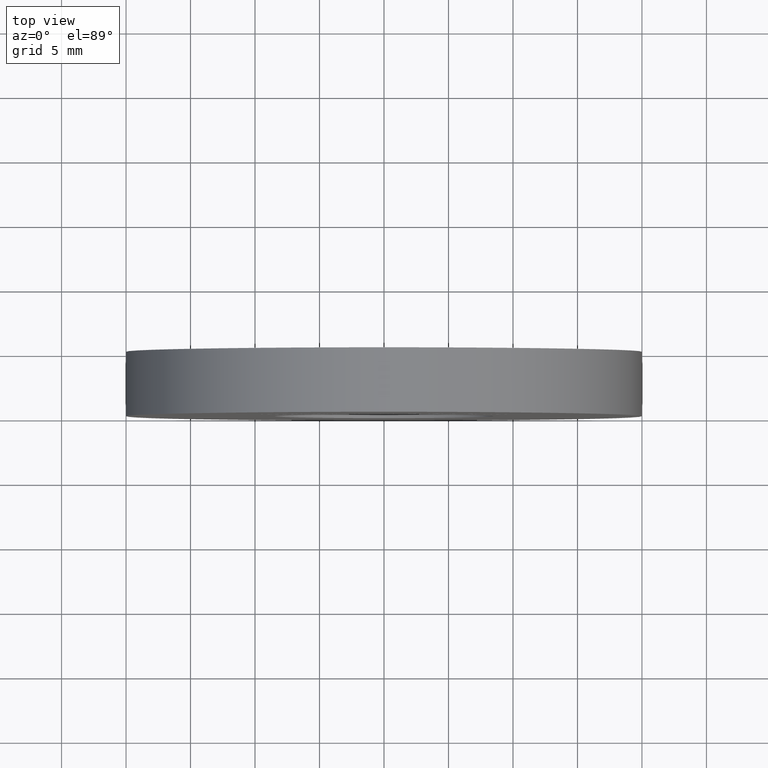
[diagram: clean part render]
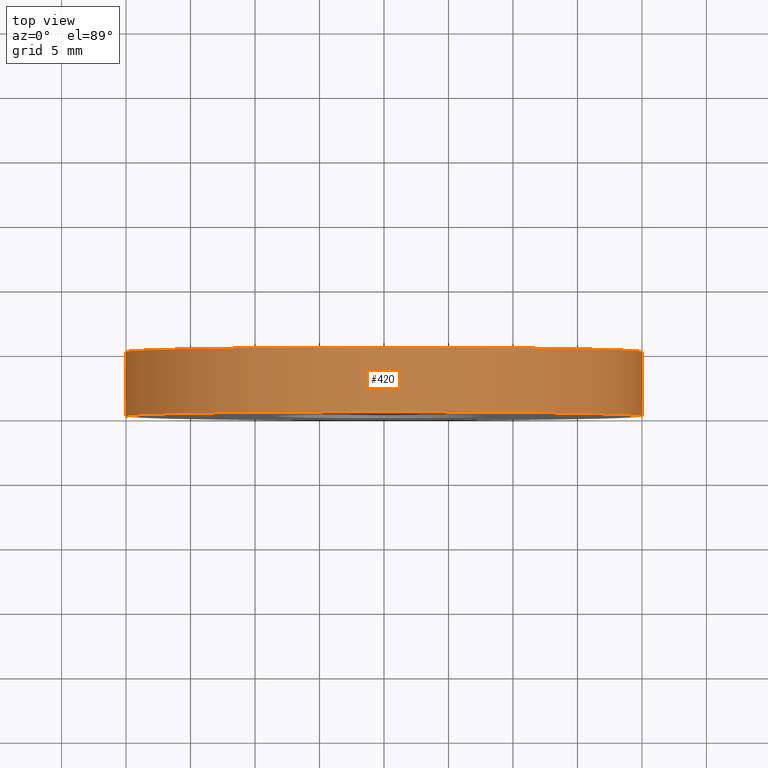
[diagram: same view with one face highlighted and labeled with its STEP entity id]
A machine part, top view. The second image highlights one B-rep face of the part: STEP entity #420.
In plain terms, the highlighted cylindrical surface (partial cylindrical patch) has radius 20 mm, axis along (0, 1, -0).
Its self-contained STEP definition (entity closure, byte-faithful):
#48 = VERTEX_POINT ( 'NONE', #9935 ) ;
#286 = VECTOR ( 'NONE', #4634, 1000.000000000000000 ) ;
#374 = DIRECTION ( 'NONE',  ( -1.000000000000000000, 1.387778780781444887E-15, 0.000000000000000000 ) ) ;
#420 = ADVANCED_FACE ( 'NONE', ( #12079 ), #3850, .T. ) ;
#422 = DIRECTION ( 'NONE',  ( 1.387778780781446464E-15, 1.000000000000000000, -0.000000000000000000 ) ) ;
#485 = AXIS2_PLACEMENT_3D ( 'NONE', #7285, #422, #374 ) ;
#708 = ORIENTED_EDGE ( 'NONE', *, *, #3933, .F. ) ;
#931 = VERTEX_POINT ( 'NONE', #9288 ) ;
#1179 = LINE ( 'NONE', #5608, #286 ) ;
#1698 = EDGE_CURVE ( 'NONE', #931, #9611, #1179, .T. ) ;
#2046 = DIRECTION ( 'NONE',  ( 1.387778780781446464E-15, 1.000000000000000000, -0.000000000000000000 ) ) ;
#2443 = CIRCLE ( 'NONE', #8897, 20.00000000000000000 ) ;
#3850 = CYLINDRICAL_SURFACE ( 'NONE', #10586, 20.00000000000000355 ) ;
#3933 = EDGE_CURVE ( 'NONE', #48, #9611, #12295, .T. ) ;
#4261 = CARTESIAN_POINT ( 'NONE',  ( -19.99999999999999645, 5.000000000000024869, 0.000000000000000000 ) ) ;
#4634 = DIRECTION ( 'NONE',  ( 1.387778780781446464E-15, 1.000000000000000000, -0.000000000000000000 ) ) ;
#5328 = ORIENTED_EDGE ( 'NONE', *, *, #1698, .T. ) ;
#5608 = CARTESIAN_POINT ( 'NONE',  ( 20.00000000000001066, 4.999999999999969802, 2.449293598294706907E-15 ) ) ;
#6106 = EDGE_LOOP ( 'NONE', ( #13323, #5328, #708, #7466 ) ) ;
#6513 = CARTESIAN_POINT ( 'NONE',  ( -4.160008679876429443E-29, -2.949029909160572061E-14, 0.000000000000000000 ) ) ;
#6815 = LINE ( 'NONE', #4261, #11815 ) ;
#7285 = CARTESIAN_POINT ( 'NONE',  ( 6.938893903907189723E-15, 4.999999999999969802, 0.000000000000000000 ) ) ;
#7466 = ORIENTED_EDGE ( 'NONE', *, *, #10722, .F. ) ;
#8897 = AXIS2_PLACEMENT_3D ( 'NONE', #6513, #11163, #14446 ) ;
#9288 = CARTESIAN_POINT ( 'NONE',  ( 20.00000000000000000, -5.724587470723465936E-14, 2.449293598294706513E-15 ) ) ;
#9611 = VERTEX_POINT ( 'NONE', #13405 ) ;
#9904 = CARTESIAN_POINT ( 'NONE',  ( -20.00000000000000000, -1.734723475976788556E-15, 0.000000000000000000 ) ) ;
#9935 = CARTESIAN_POINT ( 'NONE',  ( -20.00000000000000355, 4.999999999999997335, 0.000000000000000000 ) ) ;
#10586 = AXIS2_PLACEMENT_3D ( 'NONE', #12101, #10955, #13051 ) ;
#10722 = EDGE_CURVE ( 'NONE', #11825, #48, #6815, .T. ) ;
#10955 = DIRECTION ( 'NONE',  ( 1.387778780781446464E-15, 1.000000000000000000, -0.000000000000000000 ) ) ;
#11163 = DIRECTION ( 'NONE',  ( 1.387778780781446464E-15, 1.000000000000000000, -0.000000000000000000 ) ) ;
#11815 = VECTOR ( 'NONE', #2046, 1000.000000000000000 ) ;
#11825 = VERTEX_POINT ( 'NONE', #9904 ) ;
#12079 = FACE_OUTER_BOUND ( 'NONE', #6106, .T. ) ;
#12101 = CARTESIAN_POINT ( 'NONE',  ( 6.938893903907228378E-15, 4.999999999999997335, 0.000000000000000000 ) ) ;
#12295 = CIRCLE ( 'NONE', #485, 20.00000000000001066 ) ;
#12754 = EDGE_CURVE ( 'NONE', #11825, #931, #2443, .T. ) ;
#13051 = DIRECTION ( 'NONE',  ( -1.000000000000000000, 1.387778780781445478E-15, 0.000000000000000000 ) ) ;
#13323 = ORIENTED_EDGE ( 'NONE', *, *, #12754, .T. ) ;
#13405 = CARTESIAN_POINT ( 'NONE',  ( 20.00000000000001776, 4.999999999999942268, 2.449293598294708091E-15 ) ) ;
#14446 = DIRECTION ( 'NONE',  ( -1.000000000000000000, 1.387778780781446662E-15, 0.000000000000000000 ) ) ;